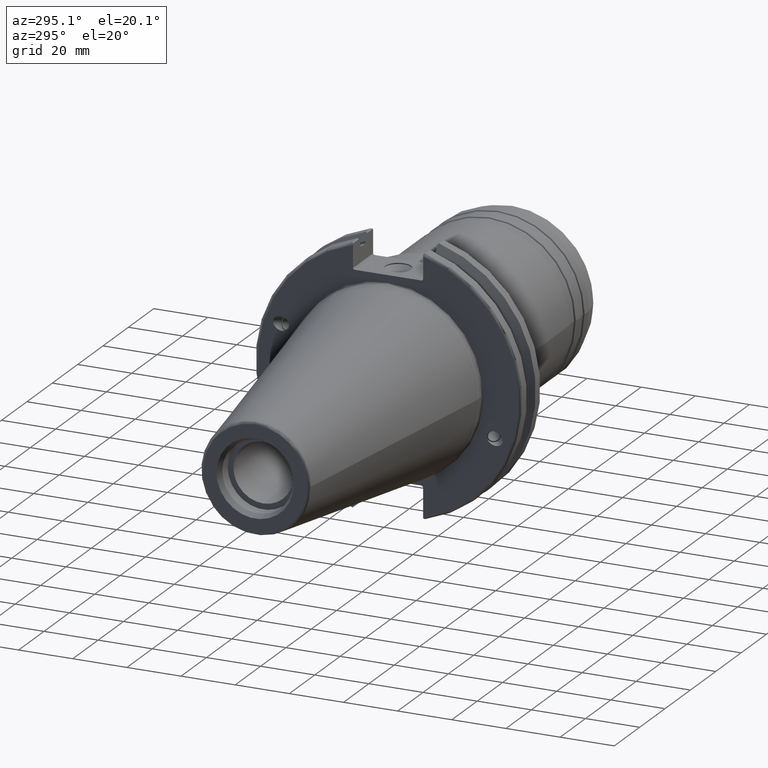
[diagram: clean part render]
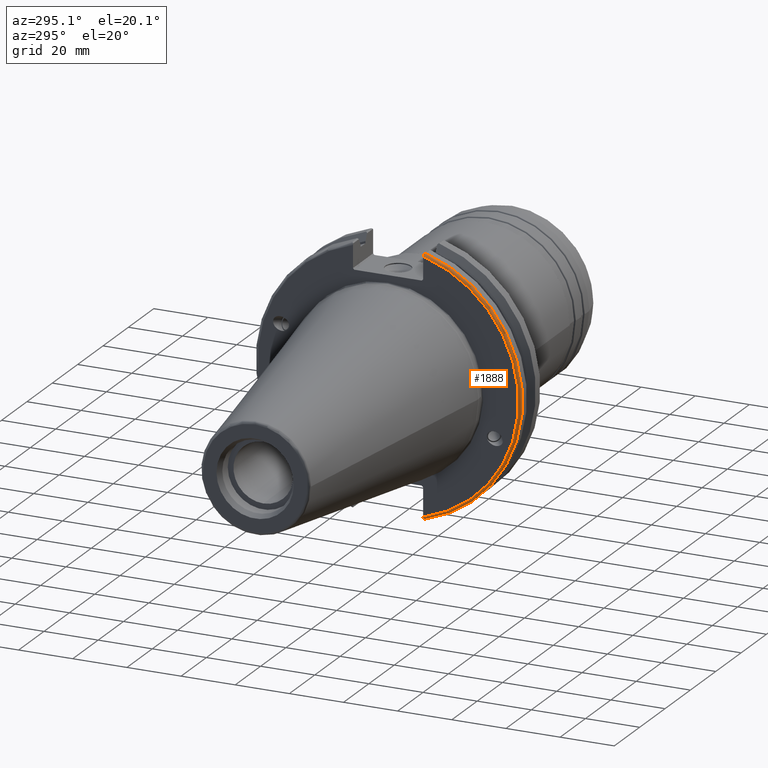
[diagram: same view with one face highlighted and labeled with its STEP entity id]
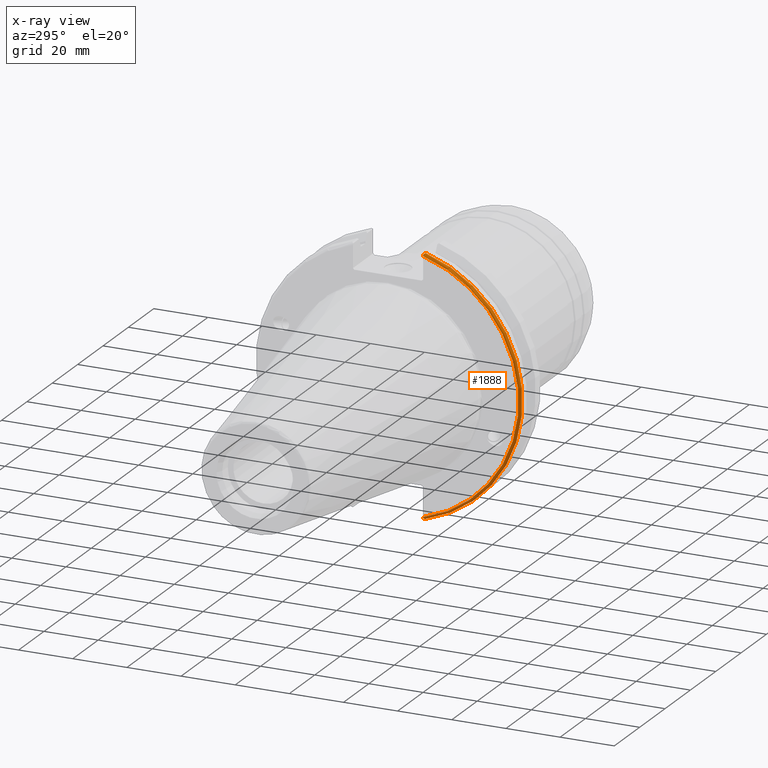
[diagram: x-ray of the same camera — body ghosted, the highlighted face saturated]
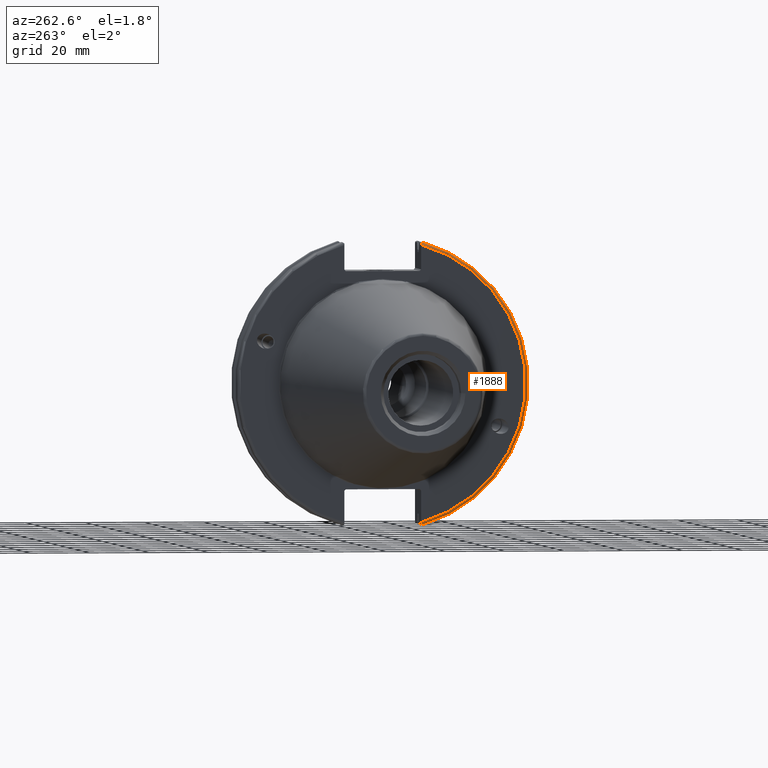
[diagram: same view with one face highlighted and labeled with its STEP entity id]
A machine part, auxiliary view. The second image highlights one B-rep face of the part: STEP entity #1888.
The next image is the same camera in x-ray: the body ghosted, the highlighted face saturated — about 0% of this face is hidden behind the body in this view.
A second angle (auxiliary view) of the same face is appended — the face is thin or edge-on in the first view.
In plain terms, the highlighted toroidal blend (fillet) surface has major radius 48.2125 mm and minor (blend) radius 1 mm.
Its self-contained STEP definition (entity closure, byte-faithful):
#86=TOROIDAL_SURFACE('',#2126,48.2125,1.);
#159=B_SPLINE_CURVE_WITH_KNOTS('',3,(#3643,#3644,#3645,#3646,#3647,#3648),
 .UNSPECIFIED.,.F.,.F.,(4,2,4),(0.0976892167532858,0.112000071948292,0.150881870548587),
 .UNSPECIFIED.);
#160=B_SPLINE_CURVE_WITH_KNOTS('',3,(#3669,#3670,#3671,#3672,#3673,#3674),
 .UNSPECIFIED.,.F.,.F.,(4,2,4),(0.452859340315922,0.491741138916218,0.506051994111223),
 .UNSPECIFIED.);
#161=B_SPLINE_CURVE_WITH_KNOTS('',3,(#3678,#3679,#3680,#3681,#3682,#3683,
#3684,#3685),.UNSPECIFIED.,.F.,.F.,(4,2,2,4),(-0.104075769062722,-0.0730268503455485,
-0.034363987365627,0.),.UNSPECIFIED.);
#162=B_SPLINE_CURVE_WITH_KNOTS('',3,(#3688,#3689,#3690,#3691,#3692,#3693,
#3694,#3695),.UNSPECIFIED.,.F.,.F.,(4,2,2,4),(0.,0.0343639873656262,0.073026850345548,
0.104075769062723),.UNSPECIFIED.);
#235=FACE_OUTER_BOUND('',#357,.T.);
#357=EDGE_LOOP('',(#1617,#1618,#1619,#1620,#1621,#1622));
#703=CIRCLE('',#2111,48.2125);
#710=CIRCLE('',#2127,49.2125);
#858=VERTEX_POINT('',#3497);
#859=VERTEX_POINT('',#3498);
#894=VERTEX_POINT('',#3642);
#900=VERTEX_POINT('',#3667);
#901=VERTEX_POINT('',#3677);
#902=VERTEX_POINT('',#3686);
#1102=EDGE_CURVE('',#858,#859,#703,.T.);
#1147=EDGE_CURVE('',#894,#858,#159,.T.);
#1157=EDGE_CURVE('',#859,#900,#160,.T.);
#1159=EDGE_CURVE('',#900,#901,#161,.T.);
#1160=EDGE_CURVE('',#901,#902,#710,.T.);
#1161=EDGE_CURVE('',#902,#894,#162,.T.);
#1617=ORIENTED_EDGE('',*,*,#1159,.T.);
#1618=ORIENTED_EDGE('',*,*,#1160,.T.);
#1619=ORIENTED_EDGE('',*,*,#1161,.T.);
#1620=ORIENTED_EDGE('',*,*,#1147,.T.);
#1621=ORIENTED_EDGE('',*,*,#1102,.T.);
#1622=ORIENTED_EDGE('',*,*,#1157,.T.);
#1888=ADVANCED_FACE('',(#235),#86,.T.);
#2111=AXIS2_PLACEMENT_3D('',#3499,#2556,#2557);
#2126=AXIS2_PLACEMENT_3D('',#3676,#2621,#2622);
#2127=AXIS2_PLACEMENT_3D('',#3687,#2623,#2624);
#2556=DIRECTION('center_axis',(1.,0.,0.));
#2557=DIRECTION('ref_axis',(0.,-1.,1.60812264967664E-16));
#2621=DIRECTION('center_axis',(1.,0.,0.));
#2622=DIRECTION('ref_axis',(0.,0.,-1.));
#2623=DIRECTION('center_axis',(-1.,0.,0.));
#2624=DIRECTION('ref_axis',(0.,-1.,1.60812264967664E-16));
#3497=CARTESIAN_POINT('',(3.175,-12.95,46.4407434937254));
#3498=CARTESIAN_POINT('',(3.175,-12.95,-46.4407434937254));
#3499=CARTESIAN_POINT('Origin',(3.175,0.,0.));
#3642=CARTESIAN_POINT('',(3.31949794294344,-12.95,46.9780755322918));
#3643=CARTESIAN_POINT('Ctrl Pts',(3.31949794294344,-12.95,46.9780755322918));
#3644=CARTESIAN_POINT('Ctrl Pts',(3.29341556483839,-12.95,46.9333752207329));
#3645=CARTESIAN_POINT('Ctrl Pts',(3.27115672912336,-12.95,46.887363294568));
#3646=CARTESIAN_POINT('Ctrl Pts',(3.20453530071253,-12.95,46.7230464903732));
#3647=CARTESIAN_POINT('Ctrl Pts',(3.175,-12.95,46.5703494890597));
#3648=CARTESIAN_POINT('Ctrl Pts',(3.175,-12.95,46.4407434937254));
#3667=CARTESIAN_POINT('',(3.31949794294343,-12.95,-46.9780755322917));
#3669=CARTESIAN_POINT('Ctrl Pts',(3.175,-12.95,-46.4407434937254));
#3670=CARTESIAN_POINT('Ctrl Pts',(3.175,-12.95,-46.5703494890597));
#3671=CARTESIAN_POINT('Ctrl Pts',(3.20453530071253,-12.95,-46.7230464903732));
#3672=CARTESIAN_POINT('Ctrl Pts',(3.27115672912336,-12.95,-46.887363294568));
#3673=CARTESIAN_POINT('Ctrl Pts',(3.29341556483838,-12.95,-46.9333752207329));
#3674=CARTESIAN_POINT('Ctrl Pts',(3.31949794294343,-12.95,-46.9780755322917));
#3676=CARTESIAN_POINT('Origin',(4.175,0.,0.));
#3677=CARTESIAN_POINT('',(4.175,-13.4317035994433,-47.3440544806494));
#3678=CARTESIAN_POINT('Ctrl Pts',(3.31949794294343,-12.95,-46.9780755322917));
#3679=CARTESIAN_POINT('Ctrl Pts',(3.36785032278753,-13.0300321736484,-47.0388807469102));
#3680=CARTESIAN_POINT('Ctrl Pts',(3.43235971798504,-13.1083611826073,-47.0983919657547));
#3681=CARTESIAN_POINT('Ctrl Pts',(3.58507512107923,-13.2478194810696,-47.2043467509586));
#3682=CARTESIAN_POINT('Ctrl Pts',(3.70638116490964,-13.3242014686233,-47.2623787015413));
#3683=CARTESIAN_POINT('Ctrl Pts',(3.92661103245834,-13.4067722493645,-47.3251126473446));
#3684=CARTESIAN_POINT('Ctrl Pts',(4.06045337544791,-13.4317035994434,-47.3440544806494));
#3685=CARTESIAN_POINT('Ctrl Pts',(4.175,-13.4317035994434,-47.3440544806494));
#3686=CARTESIAN_POINT('',(4.175,-13.4317035994433,47.3440544806494));
#3687=CARTESIAN_POINT('Origin',(4.175,0.,0.));
#3688=CARTESIAN_POINT('Ctrl Pts',(4.175,-13.4317035994433,47.3440544806494));
#3689=CARTESIAN_POINT('Ctrl Pts',(4.06045337544791,-13.4317035994433,47.3440544806494));
#3690=CARTESIAN_POINT('Ctrl Pts',(3.92661103245835,-13.4067722493645,47.3251126473446));
#3691=CARTESIAN_POINT('Ctrl Pts',(3.70638116490965,-13.3242014686233,47.2623787015413));
#3692=CARTESIAN_POINT('Ctrl Pts',(3.58507512107923,-13.2478194810695,47.2043467509586));
#3693=CARTESIAN_POINT('Ctrl Pts',(3.43235971798504,-13.1083611826073,47.0983919657547));
#3694=CARTESIAN_POINT('Ctrl Pts',(3.36785032278754,-13.0300321736484,47.0388807469102));
#3695=CARTESIAN_POINT('Ctrl Pts',(3.31949794294344,-12.95,46.9780755322918));